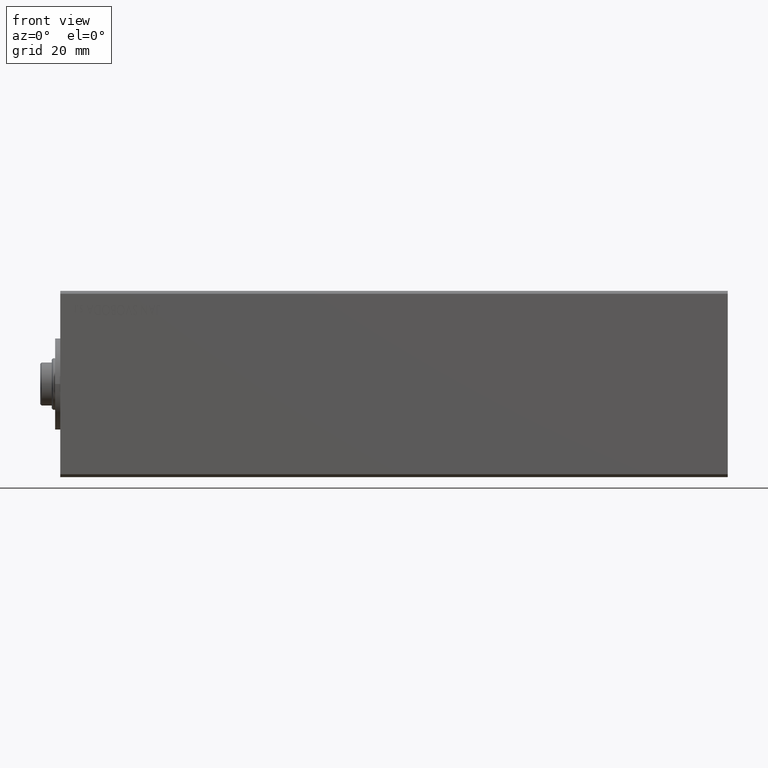
[diagram: clean part render]
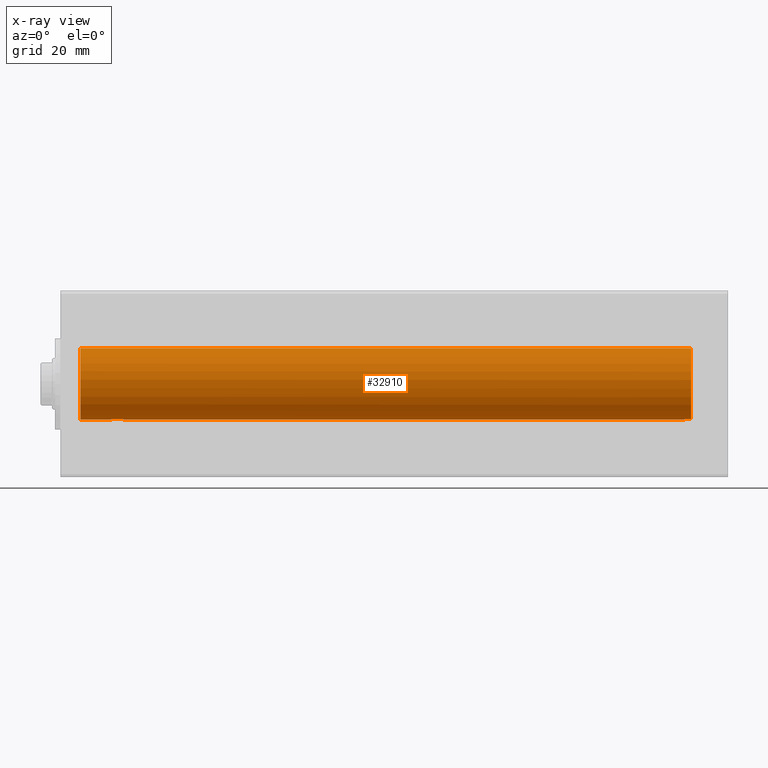
[diagram: x-ray — body ghosted, one internal face saturated and labeled with its STEP entity id]
A machine part, front view, then the same camera in x-ray: the body is ghosted and one INTERNAL B-rep face — a face not visible from any outside direction — is saturated and labeled: STEP entity #32910.
In plain terms, the highlighted cylindrical surface (edge-blend (fillet) strip) has radius 12.5 mm, axis along (-1, -0, -0).
Its self-contained STEP definition (entity closure, byte-faithful):
#644 = CARTESIAN_POINT ( 'NONE',  ( 217.2695984446193620, -0.3784411936846784896, -12.49564556562839535 ) ) ;
#1064 = CARTESIAN_POINT ( 'NONE',  ( 21.67788464345698074, -2.186140702424582916, -12.30776293449189218 ) ) ;
#1511 = CARTESIAN_POINT ( 'NONE',  ( 17.24999999999999645, -6.410479088651825822E-16, -12.50000000000000000 ) ) ;
#2430 = EDGE_LOOP ( 'NONE', ( #7314, #41491, #3442, #3788, #44911, #23098, #19456 ) ) ;
#3398 = CARTESIAN_POINT ( 'NONE',  ( 219.2632186891892729, -2.656201514649876749, -12.21469322174263716 ) ) ;
#3442 = ORIENTED_EDGE ( 'NONE', *, *, #13311, .T. ) ;
#3788 = ORIENTED_EDGE ( 'NONE', *, *, #9988, .T. ) ;
#3829 = VERTEX_POINT ( 'NONE', #22516 ) ;
#4056 = CIRCLE ( 'NONE', #43468, 12.50000000000000000 ) ;
#4179 = VECTOR ( 'NONE', #43680, 1000.000000000000000 ) ;
#4611 = AXIS2_PLACEMENT_3D ( 'NONE', #20718, #41527, #10640 ) ;
#4705 = CARTESIAN_POINT ( 'NONE',  ( 18.78070064630743730, -2.471456998035943542, -12.25344202945496441 ) ) ;
#5157 = CARTESIAN_POINT ( 'NONE',  ( 20.36416266169332800, -2.749843584008485387, -12.19378367403301588 ) ) ;
#5387 = CARTESIAN_POINT ( 'NONE',  ( 22.75000000000000000, -0.3594857543935715549, -12.50000000000000000 ) ) ;
#5627 = DIRECTION ( 'NONE',  ( -1.000000000000000000, 0.000000000000000000, 0.000000000000000000 ) ) ;
#6031 = VECTOR ( 'NONE', #21491, 1000.000000000000000 ) ;
#6720 = AXIS2_PLACEMENT_3D ( 'NONE', #41099, #30353, #34240 ) ;
#7035 = CARTESIAN_POINT ( 'NONE',  ( 217.6480334615322363, -1.437529159557709990, -12.41803794242192183 ) ) ;
#7314 = ORIENTED_EDGE ( 'NONE', *, *, #23866, .T. ) ;
#7549 = LINE ( 'NONE', #17616, #6031 ) ;
#7708 = B_SPLINE_CURVE_WITH_KNOTS ( 'NONE', 3,
 ( #8576, #5387, #29381, #18419, #7901, #36711, #25495, #39902, #1064, #42877, #25722, #35797, #5157, #19325, #29608, #12232, #39450, #4705, #22296, #40133, #43333, #11773, #11549, #32814, #8118, #18643, #19096, #1511 ),
 .UNSPECIFIED., .F., .F.,
 ( 4, 2, 2, 2, 2, 2, 2, 2, 2, 2, 2, 2, 2, 4 ),
 ( 0.008624191108698782415, 0.009701931017304708457, 0.01024080097160767061, 0.01077967092591063276, 0.01131854088021359492, 0.01185741083451655881, 0.01293515074312248485, 0.01347402069742544874, 0.01401289065172841089, 0.01455176060603137478, 0.01509063056033433520, 0.01616837046894026297, 0.01670724042324322686, 0.01724611037754619075 ),
 .UNSPECIFIED. ) ;
#7901 = CARTESIAN_POINT ( 'NONE',  ( 22.38562424273980156, -1.379726459265969485, -12.42453378661528518 ) ) ;
#8118 = CARTESIAN_POINT ( 'NONE',  ( 17.33889423267951457, -0.7167498857967393722, -12.48069645505988490 ) ) ;
#8137 = CIRCLE ( 'NONE', #6720, 12.50000000000000000 ) ;
#8576 = CARTESIAN_POINT ( 'NONE',  ( 22.74999999999999645, 1.530807688571775754E-15, -12.50000000000000000 ) ) ;
#9150 = LINE ( 'NONE', #29716, #4179 ) ;
#9988 = EDGE_CURVE ( 'NONE', #22255, #35182, #7549, .T. ) ;
#10460 = CARTESIAN_POINT ( 'NONE',  ( 220.0112932791631408, -2.756478195357875638, -12.19229375011006766 ) ) ;
#10474 = CARTESIAN_POINT ( 'NONE',  ( 217.2500000000000284, 1.530808498934191127E-15, -12.50000000000000000 ) ) ;
#10640 = DIRECTION ( 'NONE',  ( 0.000000000000000000, 0.000000000000000000, 1.000000000000000000 ) ) ;
#11549 = CARTESIAN_POINT ( 'NONE',  ( 17.59890566233854159, -1.387665903832268954, -12.42717106579813979 ) ) ;
#11773 = CARTESIAN_POINT ( 'NONE',  ( 17.80393035758983800, -1.693331246281262414, -12.38741007596727250 ) ) ;
#12232 = CARTESIAN_POINT ( 'NONE',  ( 19.28811246144865876, -2.662337596427393205, -12.21324053230518203 ) ) ;
#12583 = CARTESIAN_POINT ( 'NONE',  ( 220.1999999999999886, 1.530808498934191521E-15, -12.50000000000000000 ) ) ;
#13068 = CARTESIAN_POINT ( 'NONE',  ( 7.000000000000006217, 0.000000000000000000, 12.50000000000000000 ) ) ;
#13311 = EDGE_CURVE ( 'NONE', #36505, #22255, #7708, .T. ) ;
#13404 = FACE_OUTER_BOUND ( 'NONE', #2430, .T. ) ;
#13892 = CARTESIAN_POINT ( 'NONE',  ( 218.2640354410284829, -2.141001519665822972, -12.31595550509747561 ) ) ;
#14344 = CARTESIAN_POINT ( 'NONE',  ( 217.4054462593130665, -0.9304986053563464310, -12.46650766108567687 ) ) ;
#14756 = EDGE_CURVE ( 'NONE', #35182, #37696, #4056, .T. ) ;
#17326 = CARTESIAN_POINT ( 'NONE',  ( 218.7373494358630239, -2.450182169396498466, -12.25791070683490425 ) ) ;
#17616 = CARTESIAN_POINT ( 'NONE',  ( 220.1999999999999886, 1.530808498934191521E-15, -12.50000000000000000 ) ) ;
#18419 = CARTESIAN_POINT ( 'NONE',  ( 22.47155302408678068, -1.219035651181357371, -12.44152548389028823 ) ) ;
#18548 = DIRECTION ( 'NONE',  ( -1.000000000000000000, -0.000000000000000000, -0.000000000000000000 ) ) ;
#18643 = CARTESIAN_POINT ( 'NONE',  ( 17.26794121566710416, -0.3620346704467073962, -12.49601717746613083 ) ) ;
#18896 = CARTESIAN_POINT ( 'NONE',  ( 217.2500000000000853, -0.1905690090128230318, -12.50000000000000355 ) ) ;
#19096 = CARTESIAN_POINT ( 'NONE',  ( 17.25000000000000000, -0.1822513952969495588, -12.50000000000000355 ) ) ;
#19109 = DIRECTION ( 'NONE',  ( 0.000000000000000000, 0.000000000000000000, 1.000000000000000000 ) ) ;
#19226 = LINE ( 'NONE', #12583, #35227 ) ;
#19325 = CARTESIAN_POINT ( 'NONE',  ( 19.81969333136326483, -2.750077826247134372, -12.19373084646329808 ) ) ;
#19456 = ORIENTED_EDGE ( 'NONE', *, *, #44052, .F. ) ;
#19570 = EDGE_CURVE ( 'NONE', #29795, #37696, #9150, .T. ) ;
#20718 = CARTESIAN_POINT ( 'NONE',  ( 220.1999999999999886, 0.000000000000000000, 0.000000000000000000 ) ) ;
#20761 = CARTESIAN_POINT ( 'NONE',  ( 220.1999999999999886, -2.742717630380530291, -12.19538847269736870 ) ) ;
#20979 = CARTESIAN_POINT ( 'NONE',  ( 217.5554625446299326, -1.273488671789382076, -12.43615163631024956 ) ) ;
#21491 = DIRECTION ( 'NONE',  ( -1.000000000000000000, -0.000000000000000000, -0.000000000000000000 ) ) ;
#22255 = VERTEX_POINT ( 'NONE', #41305 ) ;
#22296 = CARTESIAN_POINT ( 'NONE',  ( 18.62282853337241662, -2.387117607438817846, -12.27037141969695533 ) ) ;
#22516 = CARTESIAN_POINT ( 'NONE',  ( 220.1999999999999886, -2.742717630380530291, -12.19538847269736870 ) ) ;
#23098 = ORIENTED_EDGE ( 'NONE', *, *, #19570, .F. ) ;
#23427 = B_SPLINE_CURVE_WITH_KNOTS ( 'NONE', 3,
 ( #20761, #10460, #34705, #31721, #3398, #31269, #17326, #45216, #13892, #27829, #24405, #7035, #20979, #14344, #28284, #644, #18896, #32612 ),
 .UNSPECIFIED., .F., .F.,
 ( 4, 2, 2, 2, 2, 2, 2, 2, 4 ),
 ( 0.01273840658692362154, 0.01330186956075144269, 0.01386533253457926385, 0.01442879550840708500, 0.01499225848223490441, 0.01555572145606272556, 0.01611918442989054845, 0.01668264740371836613, 0.01724611037754618728 ),
 .UNSPECIFIED. ) ;
#23866 = EDGE_CURVE ( 'NONE', #3829, #42146, #23427, .T. ) ;
#24405 = CARTESIAN_POINT ( 'NONE',  ( 217.8668661438309471, -1.745845535640504043, -12.37845627651902625 ) ) ;
#25495 = CARTESIAN_POINT ( 'NONE',  ( 22.07221874992021426, -1.816738551942332469, -12.36794003061528358 ) ) ;
#25722 = CARTESIAN_POINT ( 'NONE',  ( 21.22284594842850325, -2.469786832673805055, -12.25378231626125114 ) ) ;
#27829 = CARTESIAN_POINT ( 'NONE',  ( 217.9902109365599472, -1.886321387699702701, -12.35752560721841142 ) ) ;
#28241 = CYLINDRICAL_SURFACE ( 'NONE', #4611, 12.50000000000000000 ) ;
#28284 = CARTESIAN_POINT ( 'NONE',  ( 217.3471729313966136, -0.7488784512775839008, -12.47892450911127860 ) ) ;
#29381 = CARTESIAN_POINT ( 'NONE',  ( 22.67752993399135519, -0.7223728479637269162, -12.48353293779831041 ) ) ;
#29608 = CARTESIAN_POINT ( 'NONE',  ( 19.64081312293245318, -2.732363470008690509, -12.19776519060171793 ) ) ;
#29716 = CARTESIAN_POINT ( 'NONE',  ( 220.1999999999999886, 0.000000000000000000, 12.50000000000000000 ) ) ;
#29795 = VERTEX_POINT ( 'NONE', #34291 ) ;
#30353 = DIRECTION ( 'NONE',  ( -1.000000000000000000, 0.000000000000000000, 0.000000000000000000 ) ) ;
#30500 = EDGE_CURVE ( 'NONE', #42146, #36505, #19226, .T. ) ;
#31269 = CARTESIAN_POINT ( 'NONE',  ( 218.9065998029301454, -2.530361475251262426, -12.24138095936394421 ) ) ;
#31721 = CARTESIAN_POINT ( 'NONE',  ( 219.4481563948799305, -2.700597334441437347, -12.20481170720206876 ) ) ;
#32612 = CARTESIAN_POINT ( 'NONE',  ( 217.2500000000000284, 1.530808498934191127E-15, -12.50000000000000000 ) ) ;
#32814 = CARTESIAN_POINT ( 'NONE',  ( 17.39235660293251229, -0.8915091606273424230, -12.46927266348502172 ) ) ;
#32910 = ADVANCED_FACE ( 'NONE', ( #13404 ), #28241, .F. ) ;
#34240 = DIRECTION ( 'NONE',  ( 0.000000000000000000, 0.000000000000000000, 1.000000000000000000 ) ) ;
#34291 = CARTESIAN_POINT ( 'NONE',  ( 220.1999999999999886, 0.000000000000000000, 12.50000000000000000 ) ) ;
#34705 = CARTESIAN_POINT ( 'NONE',  ( 219.8203589559504678, -2.750542932331175194, -12.19365278940038877 ) ) ;
#35182 = VERTEX_POINT ( 'NONE', #44788 ) ;
#35227 = VECTOR ( 'NONE', #18548, 1000.000000000000000 ) ;
#35797 = CARTESIAN_POINT ( 'NONE',  ( 20.72193900340274908, -2.678077841496246503, -12.21056965450630294 ) ) ;
#36505 = VERTEX_POINT ( 'NONE', #44685 ) ;
#36711 = CARTESIAN_POINT ( 'NONE',  ( 22.18559702430409786, -1.678694069001123390, -12.38768223437475235 ) ) ;
#37696 = VERTEX_POINT ( 'NONE', #13068 ) ;
#39450 = CARTESIAN_POINT ( 'NONE',  ( 19.11268508135160360, -2.609111504363109901, -12.22487130485038165 ) ) ;
#39902 = CARTESIAN_POINT ( 'NONE',  ( 21.81885462682171806, -2.070361649597391995, -12.32802020629775974 ) ) ;
#40133 = CARTESIAN_POINT ( 'NONE',  ( 18.32327680794583458, -2.187128495874283818, -12.30759172996874362 ) ) ;
#41099 = CARTESIAN_POINT ( 'NONE',  ( 220.1999999999999886, 0.000000000000000000, 0.000000000000000000 ) ) ;
#41305 = CARTESIAN_POINT ( 'NONE',  ( 17.24999999999999645, -6.410479088651825822E-16, -12.50000000000000000 ) ) ;
#41491 = ORIENTED_EDGE ( 'NONE', *, *, #30500, .T. ) ;
#41527 = DIRECTION ( 'NONE',  ( -1.000000000000000000, -0.000000000000000000, -0.000000000000000000 ) ) ;
#42146 = VERTEX_POINT ( 'NONE', #10474 ) ;
#42877 = CARTESIAN_POINT ( 'NONE',  ( 21.38049077597101544, -2.385110744809374683, -12.27075736690464502 ) ) ;
#43113 = CARTESIAN_POINT ( 'NONE',  ( 7.000000000000006217, 0.000000000000000000, 0.000000000000000000 ) ) ;
#43333 = CARTESIAN_POINT ( 'NONE',  ( 18.18303496097383842, -2.071964331967047990, -12.32774466729451213 ) ) ;
#43468 = AXIS2_PLACEMENT_3D ( 'NONE', #43113, #5627, #19109 ) ;
#43680 = DIRECTION ( 'NONE',  ( -1.000000000000000000, -0.000000000000000000, -0.000000000000000000 ) ) ;
#44052 = EDGE_CURVE ( 'NONE', #3829, #29795, #8137, .T. ) ;
#44685 = CARTESIAN_POINT ( 'NONE',  ( 22.74999999999999645, 1.530807688571775754E-15, -12.50000000000000000 ) ) ;
#44788 = CARTESIAN_POINT ( 'NONE',  ( 7.000000000000006217, 1.530808498934191521E-15, -12.50000000000000000 ) ) ;
#44911 = ORIENTED_EDGE ( 'NONE', *, *, #14756, .T. ) ;
#45216 = CARTESIAN_POINT ( 'NONE',  ( 218.4163653753807921, -2.256054185087572161, -12.29512045788552044 ) ) ;